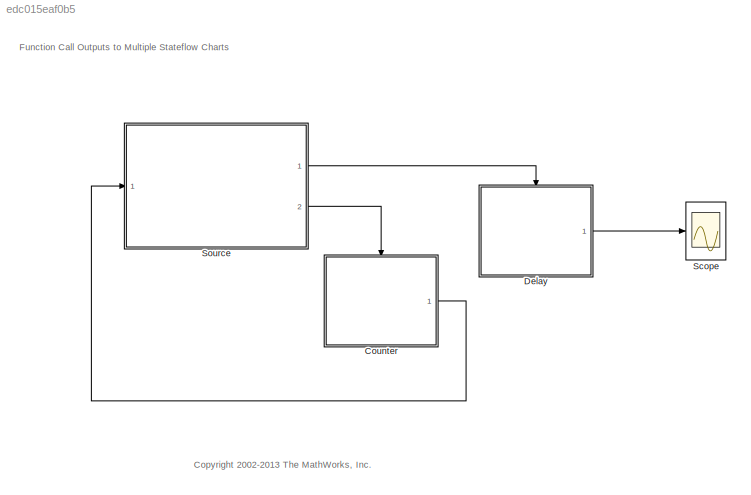
MODEL slx_edc015eaf0b5
KIND model
CONFIG AbsTol = auto
CONFIG EnableMultiTasking = on
CONFIG FixedStep = auto
CONFIG MaxStep = 1
CONFIG MinStep = auto
CONFIG RelTol = 1e-3
CONFIG SampleTimeConstraint = Unconstrained
CONFIG Solver = ode45
CONFIG SolverName = ode45
CONFIG StartTime = 0.0
CONFIG StopTime = 30
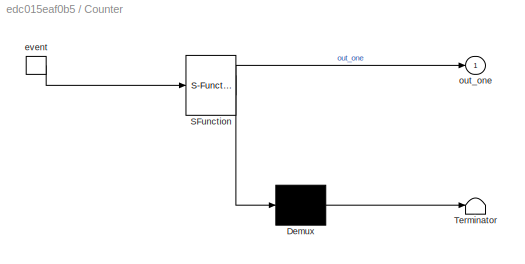
BLOCK [SubSystem] Counter
  ErrorFcn = Stateflow.Translate.translate
  PermitHierarchicalResolution = ExplicitOnly
  Ports = [0, 1, 0, 1]
  RequestExecContextInheritance = off
  SFBlockType = Chart
  TreatAsAtomicUnit = on
  Variant = off
BLOCK [Demux] Counter/ Demux 
  Outputs = 1
  Ports = [1, 1]
BLOCK [S-Function] Counter/ SFunction 
  EnableBusSupport = off
  FunctionName = sf_sfun
  PortCounts = [1 2]
  Ports = [1, 2]
  SFcnIsStateOwnerBlock = off
  SFunctionDeploymentMode = off
  Tag = Stateflow S-Function sf_multfuncout 2
BLOCK [Terminator] Counter/ Terminator 
BLOCK [TriggerPort] Counter/event
  Ports = [0, 1]
  ShowOutputPort = on
  TriggerType = function-call
  VariantControl = (inherit)
  ZeroCross = off
BLOCK [Outport] Counter/out_one
  IconDisplay = Port number
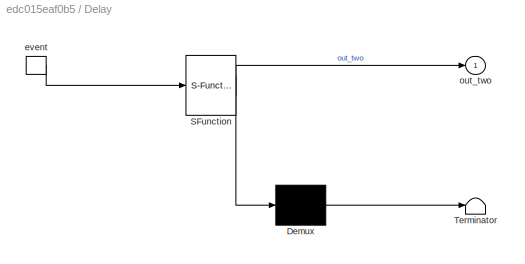
BLOCK [SubSystem] Delay
  ErrorFcn = Stateflow.Translate.translate
  PermitHierarchicalResolution = ExplicitOnly
  Ports = [0, 1, 0, 1]
  RequestExecContextInheritance = off
  SFBlockType = Chart
  TreatAsAtomicUnit = on
  Variant = off
BLOCK [Demux] Delay/ Demux 
  Outputs = 1
  Ports = [1, 1]
BLOCK [S-Function] Delay/ SFunction 
  EnableBusSupport = off
  FunctionName = sf_sfun
  PortCounts = [1 2]
  Ports = [1, 2]
  SFcnIsStateOwnerBlock = off
  SFunctionDeploymentMode = off
  Tag = Stateflow S-Function sf_multfuncout 3
BLOCK [Terminator] Delay/ Terminator 
BLOCK [TriggerPort] Delay/event
  Ports = [0, 1]
  ShowOutputPort = on
  TriggerType = function-call
  VariantControl = (inherit)
  ZeroCross = off
BLOCK [Outport] Delay/out_two
  IconDisplay = Port number
BLOCK [Scope] Scope
  NumInputPorts = 1
  Ports = [1]
  ScopeSpecificationString = Simulink.scopes.TimeScopeBlockCfg('CurrentConfiguration', extmgr.ConfigurationSet(extmgr.Configuration('Core','General UI',true),extmgr.Configuration('Core','Source UI',true),extmgr.Configuration('Sources','WiredSimulink',true,'DataLoggingLimitDataPoints',true,'DataLoggingDecimation','1','DataLoggingSaveFormat','StructureWithTime'),extmgr.Configuration('Visuals','Time Domain',true,'SerializedDispl...<+1624ch>
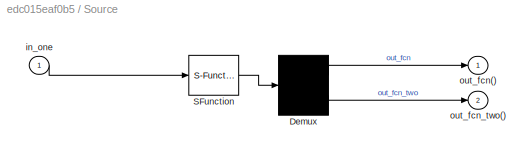
BLOCK [SubSystem] Source
  ErrorFcn = Stateflow.Translate.translate
  PermitHierarchicalResolution = ExplicitOnly
  Ports = [1, 2]
  RequestExecContextInheritance = off
  SFBlockType = Chart
  TreatAsAtomicUnit = on
  Variant = off
BLOCK [Demux] Source/ Demux 
  Outputs = 2
  Ports = [1, 2]
BLOCK [S-Function] Source/ SFunction 
  EnableBusSupport = off
  FunctionName = sf_sfun
  PortCounts = [1 1]
  Ports = [1, 1]
  SFcnIsStateOwnerBlock = off
  SFunctionDeploymentMode = off
  Tag = Stateflow S-Function sf_multfuncout 1
BLOCK [Inport] Source/in_one
  IconDisplay = Port number
BLOCK [Outport] Source/out_fcn()
  IconDisplay = Port number
BLOCK [Outport] Source/out_fcn_two()
  IconDisplay = Port number
  Port = 2
ANNOTATION (root): <copyright redacted>
ANNOTATION (root): Function Call Outputs to Multiple Stateflow Charts
LINE Counter:1 -> Source:1
LINE Delay:1 -> Scope:1
LINE Source:1 -> Delay:trigger
LINE Source:2 -> Counter:trigger
CHART Source states=3 transitions=5
  STATE_LABEL 'A'
  STATE_LABEL 'B'
  STATE_LABEL 'C'
CHART Counter states=1 transitions=1
  STATE_LABEL 'A\nen:out_one=1;\ndu:out_one = out_one + 1;'
CHART Delay states=1 transitions=1
  STATE_LABEL 'A\nen:out_two=1;\ndu:out_two = out_two + 1;'
